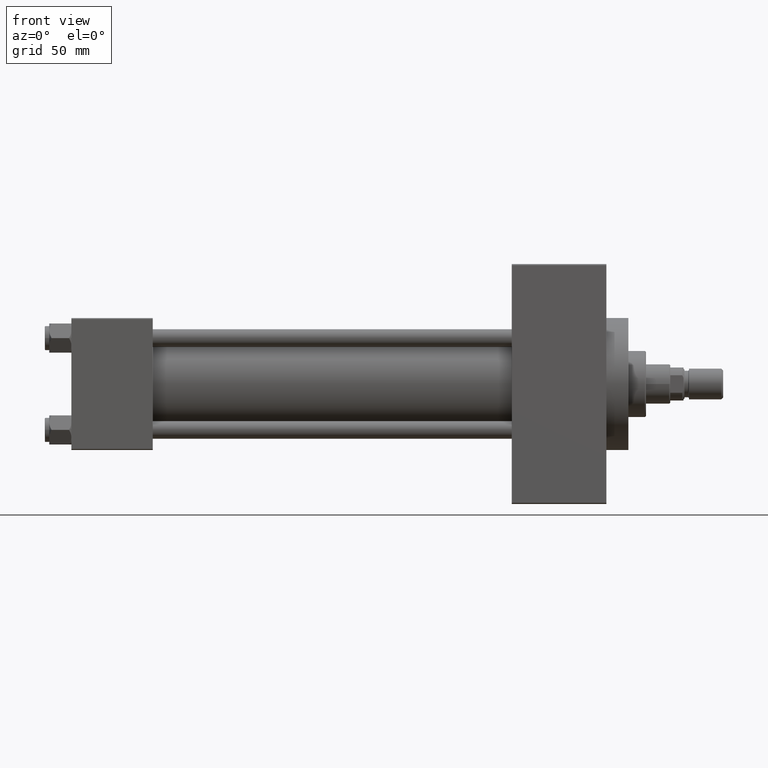
[diagram: clean part render]
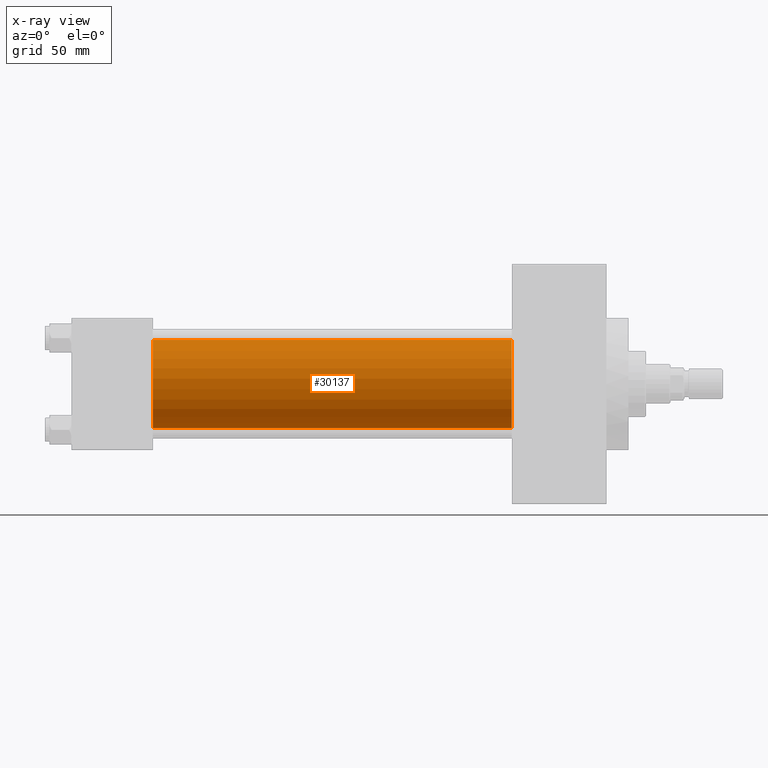
[diagram: x-ray — body ghosted, one internal face saturated and labeled with its STEP entity id]
A machine part, front view, then the same camera in x-ray: the body is ghosted and one INTERNAL B-rep face — a face not visible from any outside direction — is saturated and labeled: STEP entity #30137.
In plain terms, the highlighted cylindrical surface (partial cylindrical patch) has radius 20 mm, axis along (-1, -0, -0).
Its self-contained STEP definition (entity closure, byte-faithful):
#164 = VERTEX_POINT ( 'NONE', #18224 ) ;
#1167 = CIRCLE ( 'NONE', #7364, 20.00000000000000000 ) ;
#3615 = CARTESIAN_POINT ( 'NONE',  ( 200.0000000000000000, -2.602085213965210642E-15, 20.00000000000000000 ) ) ;
#3751 = ORIENTED_EDGE ( 'NONE', *, *, #18731, .F. ) ;
#4861 = ORIENTED_EDGE ( 'NONE', *, *, #15011, .F. ) ;
#6781 = DIRECTION ( 'NONE',  ( 0.000000000000000000, 0.000000000000000000, -1.000000000000000000 ) ) ;
#7364 = AXIS2_PLACEMENT_3D ( 'NONE', #11451, #33955, #26238 ) ;
#11451 = CARTESIAN_POINT ( 'NONE',  ( 200.0000000000000000, -2.602085213965210642E-15, 0.000000000000000000 ) ) ;
#11563 = DIRECTION ( 'NONE',  ( 0.000000000000000000, 0.000000000000000000, 1.000000000000000000 ) ) ;
#13261 = AXIS2_PLACEMENT_3D ( 'NONE', #39005, #18399, #6781 ) ;
#14308 = AXIS2_PLACEMENT_3D ( 'NONE', #18375, #33608, #11563 ) ;
#14662 = LINE ( 'NONE', #36233, #38322 ) ;
#15011 = EDGE_CURVE ( 'NONE', #39095, #32368, #14662, .T. ) ;
#18224 = CARTESIAN_POINT ( 'NONE',  ( 200.0000000000000000, -1.527916156705042519E-16, -20.00000000000000000 ) ) ;
#18375 = CARTESIAN_POINT ( 'NONE',  ( 200.0000000000000000, -2.602085213965210642E-15, 0.000000000000000000 ) ) ;
#18399 = DIRECTION ( 'NONE',  ( 1.000000000000000000, 0.000000000000000000, 0.000000000000000000 ) ) ;
#18544 = DIRECTION ( 'NONE',  ( -1.000000000000000000, -0.000000000000000000, -0.000000000000000000 ) ) ;
#18601 = FACE_OUTER_BOUND ( 'NONE', #44089, .T. ) ;
#18731 = EDGE_CURVE ( 'NONE', #32368, #39796, #39537, .T. ) ;
#18843 = CYLINDRICAL_SURFACE ( 'NONE', #14308, 20.00000000000000000 ) ;
#24120 = ORIENTED_EDGE ( 'NONE', *, *, #28298, .T. ) ;
#25804 = DIRECTION ( 'NONE',  ( -1.000000000000000000, -0.000000000000000000, -0.000000000000000000 ) ) ;
#26238 = DIRECTION ( 'NONE',  ( 0.000000000000000000, 0.000000000000000000, -1.000000000000000000 ) ) ;
#28298 = EDGE_CURVE ( 'NONE', #164, #39796, #33310, .T. ) ;
#30137 = ADVANCED_FACE ( 'NONE', ( #18601 ), #18843, .F. ) ;
#31683 = ORIENTED_EDGE ( 'NONE', *, *, #45522, .T. ) ;
#32368 = VERTEX_POINT ( 'NONE', #46479 ) ;
#33310 = LINE ( 'NONE', #36962, #35863 ) ;
#33608 = DIRECTION ( 'NONE',  ( -1.000000000000000000, -0.000000000000000000, -0.000000000000000000 ) ) ;
#33955 = DIRECTION ( 'NONE',  ( 1.000000000000000000, 0.000000000000000000, 0.000000000000000000 ) ) ;
#35863 = VECTOR ( 'NONE', #18544, 1000.000000000000000 ) ;
#36233 = CARTESIAN_POINT ( 'NONE',  ( 200.0000000000000000, -2.602085213965210642E-15, 20.00000000000000000 ) ) ;
#36962 = CARTESIAN_POINT ( 'NONE',  ( 200.0000000000000000, -1.527916156705042519E-16, -20.00000000000000000 ) ) ;
#38322 = VECTOR ( 'NONE', #25804, 1000.000000000000000 ) ;
#39005 = CARTESIAN_POINT ( 'NONE',  ( 37.00000000000000000, -2.602085213965210642E-15, 0.000000000000000000 ) ) ;
#39010 = CARTESIAN_POINT ( 'NONE',  ( 37.00000000000000000, -1.527916156705042519E-16, -20.00000000000000000 ) ) ;
#39095 = VERTEX_POINT ( 'NONE', #3615 ) ;
#39537 = CIRCLE ( 'NONE', #13261, 20.00000000000000000 ) ;
#39796 = VERTEX_POINT ( 'NONE', #39010 ) ;
#44089 = EDGE_LOOP ( 'NONE', ( #31683, #24120, #3751, #4861 ) ) ;
#45522 = EDGE_CURVE ( 'NONE', #39095, #164, #1167, .T. ) ;
#46479 = CARTESIAN_POINT ( 'NONE',  ( 37.00000000000000000, -2.602085213965210642E-15, 20.00000000000000000 ) ) ;